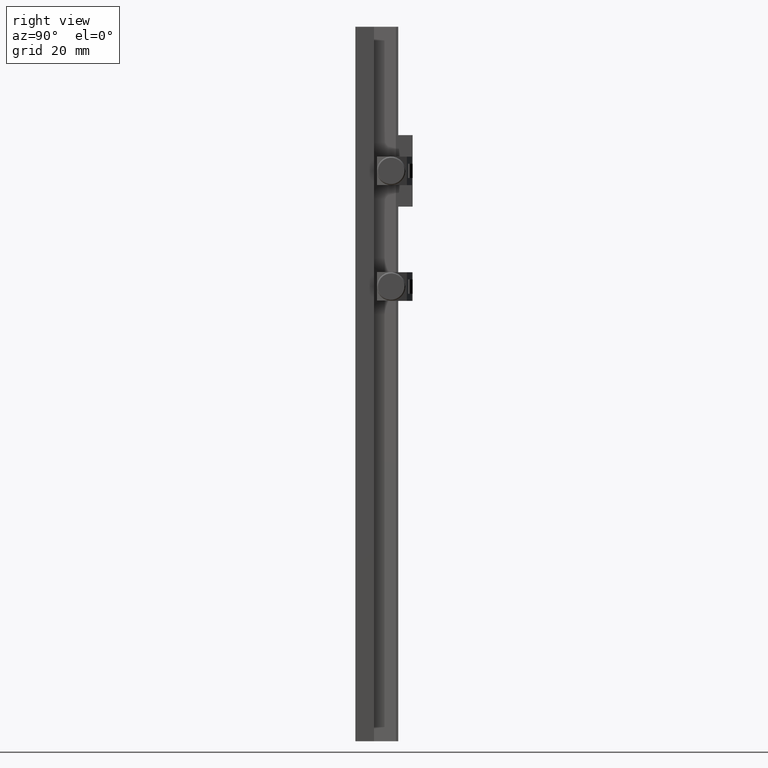
[diagram: clean part render]
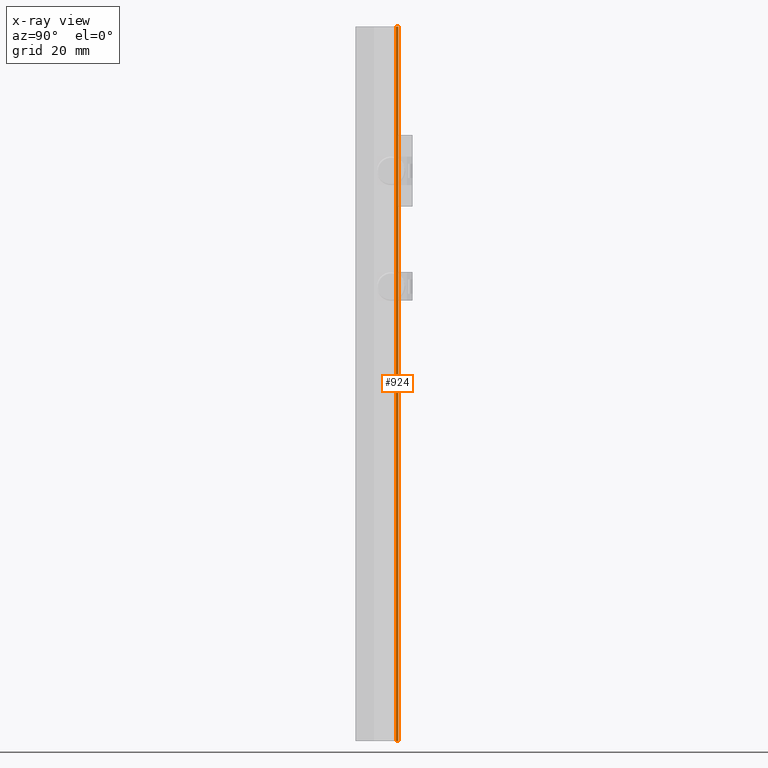
[diagram: x-ray — body ghosted, one internal face saturated and labeled with its STEP entity id]
A machine part, right view, then the same camera in x-ray: the body is ghosted and one INTERNAL B-rep face — a face not visible from any outside direction — is saturated and labeled: STEP entity #924.
In plain terms, the highlighted planar face has unit normal (-1, 0, 0).
Its self-contained STEP definition (entity closure, byte-faithful):
#924 = ADVANCED_FACE ( 'NONE', ( #16508 ), #42934, .F. ) ;
#3363 = EDGE_CURVE ( 'NONE', #71722, #41664, #76234, .T. ) ;
#4926 = CARTESIAN_POINT ( 'NONE',  ( -6.106594859342999726, 10.67718597128058100, -41.66666666666665009 ) ) ;
#8919 = EDGE_LOOP ( 'NONE', ( #22652, #69952, #41414, #70732 ) ) ;
#13803 = CARTESIAN_POINT ( 'NONE',  ( -6.106594859342999726, 11.54321137506500072, 125.0000000000000000 ) ) ;
#15665 = CARTESIAN_POINT ( 'NONE',  ( -6.106594859342999726, 11.54321137506500072, 125.0000000000000000 ) ) ;
#16508 = FACE_OUTER_BOUND ( 'NONE', #8919, .T. ) ;
#17839 = EDGE_CURVE ( 'NONE', #40296, #47797, #61275, .T. ) ;
#22652 = ORIENTED_EDGE ( 'NONE', *, *, #39813, .T. ) ;
#25099 = CARTESIAN_POINT ( 'NONE',  ( -6.106594859342999726, 10.67718597128058100, 125.0000000000000000 ) ) ;
#27362 = CARTESIAN_POINT ( 'NONE',  ( -6.106594859342999726, 11.54321137506500072, -41.66666666666665009 ) ) ;
#32915 = CARTESIAN_POINT ( 'NONE',  ( -6.106594859342999726, 10.67718597128058100, 125.0000000000000000 ) ) ;
#34921 = EDGE_CURVE ( 'NONE', #71722, #47797, #78199, .T. ) ;
#35086 = CARTESIAN_POINT ( 'NONE',  ( -6.106594859342999726, 11.25453624047019119, -125.0000000000000000 ) ) ;
#35394 = CARTESIAN_POINT ( 'NONE',  ( -6.106594859342999726, 11.54321137506500072, -125.0000000000000000 ) ) ;
#37382 = AXIS2_PLACEMENT_3D ( 'NONE', #56836, #57260, #70271 ) ;
#38970 = CARTESIAN_POINT ( 'NONE',  ( -6.106594859342999726, 10.67718597128058100, 41.66666666666665009 ) ) ;
#39813 = EDGE_CURVE ( 'NONE', #40296, #41664, #82766, .T. ) ;
#40296 = VERTEX_POINT ( 'NONE', #44631 ) ;
#41414 = ORIENTED_EDGE ( 'NONE', *, *, #34921, .T. ) ;
#41664 = VERTEX_POINT ( 'NONE', #13803 ) ;
#42133 = CARTESIAN_POINT ( 'NONE',  ( -6.106594859342999726, 11.54321137506500072, 41.66666666666665009 ) ) ;
#42934 = PLANE ( 'NONE',  #37382 ) ;
#44631 = CARTESIAN_POINT ( 'NONE',  ( -6.106594859342999726, 11.54321137506500072, -125.0000000000000000 ) ) ;
#47797 = VERTEX_POINT ( 'NONE', #64213 ) ;
#54129 = CARTESIAN_POINT ( 'NONE',  ( -6.106594859342999726, 10.96586110587537988, 125.0000000000000000 ) ) ;
#55452 = CARTESIAN_POINT ( 'NONE',  ( -6.106594859342999726, 11.25453624047019119, 125.0000000000000000 ) ) ;
#56836 = CARTESIAN_POINT ( 'NONE',  ( -6.106594859342999726, 17.47597786107219875, -125.0000000000000000 ) ) ;
#57260 = DIRECTION ( 'NONE',  ( -1.000000000000000000, 1.717114570520704725E-16, 0.000000000000000000 ) ) ;
#61275 = B_SPLINE_CURVE_WITH_KNOTS ( 'NONE', 3,
 ( #75827, #35086, #82125, #61524 ),
 .UNSPECIFIED., .F., .F.,
 ( 4, 4 ),
 ( 0.000000000000000000, 1.000000000000000000 ),
 .UNSPECIFIED. ) ;
#61524 = CARTESIAN_POINT ( 'NONE',  ( -6.106594859342999726, 10.67718597128058100, -125.0000000000000000 ) ) ;
#64213 = CARTESIAN_POINT ( 'NONE',  ( -6.106594859342999726, 10.67718597128058100, -125.0000000000000000 ) ) ;
#68890 = CARTESIAN_POINT ( 'NONE',  ( -6.106594859342999726, 10.67718597128058100, 125.0000000000000000 ) ) ;
#69952 = ORIENTED_EDGE ( 'NONE', *, *, #3363, .F. ) ;
#70271 = DIRECTION ( 'NONE',  ( 0.000000000000000000, 0.000000000000000000, 1.000000000000000000 ) ) ;
#70732 = ORIENTED_EDGE ( 'NONE', *, *, #17839, .F. ) ;
#71722 = VERTEX_POINT ( 'NONE', #32915 ) ;
#74726 = CARTESIAN_POINT ( 'NONE',  ( -6.106594859342999726, 11.54321137506500072, 125.0000000000000000 ) ) ;
#75827 = CARTESIAN_POINT ( 'NONE',  ( -6.106594859342999726, 11.54321137506500072, -125.0000000000000000 ) ) ;
#76234 = B_SPLINE_CURVE_WITH_KNOTS ( 'NONE', 3,
 ( #68890, #54129, #55452, #74726 ),
 .UNSPECIFIED., .F., .F.,
 ( 4, 4 ),
 ( 0.000000000000000000, 1.000000000000000000 ),
 .UNSPECIFIED. ) ;
#78199 = B_SPLINE_CURVE_WITH_KNOTS ( 'NONE', 3,
 ( #25099, #38970, #4926, #86880 ),
 .UNSPECIFIED., .F., .F.,
 ( 4, 4 ),
 ( 0.000000000000000000, 1.000000000000000000 ),
 .UNSPECIFIED. ) ;
#82125 = CARTESIAN_POINT ( 'NONE',  ( -6.106594859342999726, 10.96586110587537988, -125.0000000000000000 ) ) ;
#82766 = B_SPLINE_CURVE_WITH_KNOTS ( 'NONE', 3,
 ( #35394, #27362, #42133, #15665 ),
 .UNSPECIFIED., .F., .F.,
 ( 4, 4 ),
 ( 0.000000000000000000, 1.000000000000000000 ),
 .UNSPECIFIED. ) ;
#86880 = CARTESIAN_POINT ( 'NONE',  ( -6.106594859342999726, 10.67718597128058100, -125.0000000000000000 ) ) ;